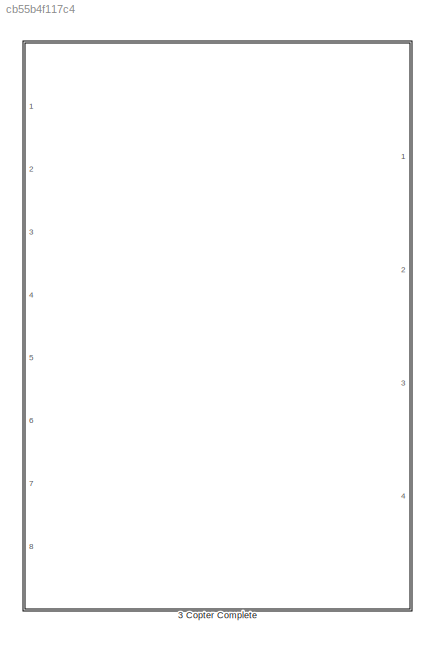
MODEL slx_cb55b4f117c4
KIND model
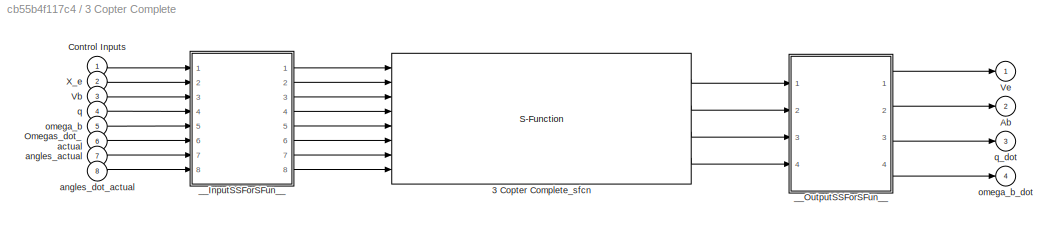
BLOCK [SubSystem] 3 Copter Complete
  FunctionWithSeparateData = off
  MaskHideContents = off
  MinAlgLoopOccurrences = off
  Opaque = off
  Ports = [8, 4]
  PropExecContextOutsideSubsystem = off
  RTWSystemCode = Auto
  RequestExecContextInheritance = off
BLOCK [S-Function] 3 Copter Complete/3 Copter Complete_sfcn
  CopyFcn = if ~strcmp(get_param(gcb,'Linkstatus'),'none') && ...\n~strcmp(get_param(gcb,'Linkstatus'),'implicit')      \n  set_param(gcb,'LinkStatus','none');                \nend
  EnableBusSupport = off
  FunctionName = Copter0_sf
  Ports = [8, 4]
BLOCK [Outport] 3 Copter Complete/Ab
  IconDisplay = Port number
  Port = 2
BLOCK [Inport] 3 Copter Complete/Control Inputs
  IconDisplay = Port number
BLOCK [Inport] 3 Copter Complete/Omegas_dot_actual
  IconDisplay = Port number
  Port = 6
BLOCK [Inport] 3 Copter Complete/Vb
  IconDisplay = Port number
  Port = 3
BLOCK [Outport] 3 Copter Complete/Ve
  IconDisplay = Port number
BLOCK [Inport] 3 Copter Complete/X_e
  IconDisplay = Port number
  Port = 2
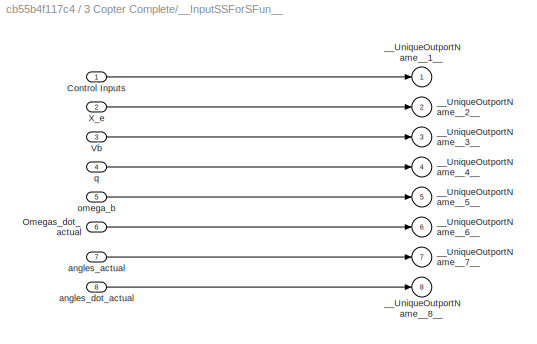
BLOCK [SubSystem] 3 Copter Complete/__InputSSForSFun__
  FunctionWithSeparateData = off
  MaskHideContents = off
  MinAlgLoopOccurrences = off
  Opaque = off
  PermitHierarchicalResolution = ExplicitOnly
  Ports = [8, 8]
  PropExecContextOutsideSubsystem = off
  RTWSystemCode = Auto
  RequestExecContextInheritance = off
BLOCK [Inport] 3 Copter Complete/__InputSSForSFun__/Control Inputs
  IconDisplay = Port number
BLOCK [Inport] 3 Copter Complete/__InputSSForSFun__/Omegas_dot_actual
  IconDisplay = Port number
  Port = 6
BLOCK [Inport] 3 Copter Complete/__InputSSForSFun__/Vb
  IconDisplay = Port number
  Port = 3
BLOCK [Inport] 3 Copter Complete/__InputSSForSFun__/X_e
  IconDisplay = Port number
  Port = 2
BLOCK [Outport] 3 Copter Complete/__InputSSForSFun__/__UniqueOutportName__1__
  IconDisplay = Port number
BLOCK [Outport] 3 Copter Complete/__InputSSForSFun__/__UniqueOutportName__2__
  IconDisplay = Port number
  Port = 2
BLOCK [Outport] 3 Copter Complete/__InputSSForSFun__/__UniqueOutportName__3__
  IconDisplay = Port number
  Port = 3
BLOCK [Outport] 3 Copter Complete/__InputSSForSFun__/__UniqueOutportName__4__
  IconDisplay = Port number
  Port = 4
BLOCK [Outport] 3 Copter Complete/__InputSSForSFun__/__UniqueOutportName__5__
  IconDisplay = Port number
  Port = 5
BLOCK [Outport] 3 Copter Complete/__InputSSForSFun__/__UniqueOutportName__6__
  IconDisplay = Port number
  Port = 6
BLOCK [Outport] 3 Copter Complete/__InputSSForSFun__/__UniqueOutportName__7__
  IconDisplay = Port number
  Port = 7
BLOCK [Outport] 3 Copter Complete/__InputSSForSFun__/__UniqueOutportName__8__
  IconDisplay = Port number
  Port = 8
BLOCK [Inport] 3 Copter Complete/__InputSSForSFun__/angles_actual
  IconDisplay = Port number
  Port = 7
BLOCK [Inport] 3 Copter Complete/__InputSSForSFun__/angles_dot_actual
  IconDisplay = Port number
  Port = 8
BLOCK [Inport] 3 Copter Complete/__InputSSForSFun__/omega_b
  IconDisplay = Port number
  Port = 5
BLOCK [Inport] 3 Copter Complete/__InputSSForSFun__/q
  IconDisplay = Port number
  Port = 4
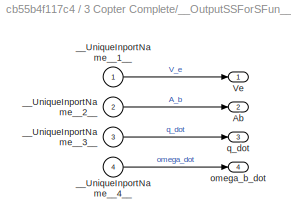
BLOCK [SubSystem] 3 Copter Complete/__OutputSSForSFun__
  FunctionWithSeparateData = off
  MaskHideContents = off
  MinAlgLoopOccurrences = off
  Opaque = off
  PermitHierarchicalResolution = ExplicitOnly
  Ports = [4, 4]
  PropExecContextOutsideSubsystem = off
  RTWSystemCode = Auto
  RequestExecContextInheritance = off
BLOCK [Outport] 3 Copter Complete/__OutputSSForSFun__/Ab
  IconDisplay = Port number
  Port = 2
BLOCK [Outport] 3 Copter Complete/__OutputSSForSFun__/Ve
  IconDisplay = Port number
BLOCK [Inport] 3 Copter Complete/__OutputSSForSFun__/__UniqueInportName__1__
  IconDisplay = Port number
BLOCK [Inport] 3 Copter Complete/__OutputSSForSFun__/__UniqueInportName__2__
  IconDisplay = Port number
  Port = 2
BLOCK [Inport] 3 Copter Complete/__OutputSSForSFun__/__UniqueInportName__3__
  IconDisplay = Port number
  Port = 3
BLOCK [Inport] 3 Copter Complete/__OutputSSForSFun__/__UniqueInportName__4__
  IconDisplay = Port number
  Port = 4
BLOCK [Outport] 3 Copter Complete/__OutputSSForSFun__/omega_b_dot
  IconDisplay = Port number
  Port = 4
BLOCK [Outport] 3 Copter Complete/__OutputSSForSFun__/q_dot
  IconDisplay = Port number
  Port = 3
BLOCK [Inport] 3 Copter Complete/angles_actual
  IconDisplay = Port number
  Port = 7
BLOCK [Inport] 3 Copter Complete/angles_dot_actual
  IconDisplay = Port number
  Port = 8
BLOCK [Inport] 3 Copter Complete/omega_b
  IconDisplay = Port number
  Port = 5
BLOCK [Outport] 3 Copter Complete/omega_b_dot
  IconDisplay = Port number
  Port = 4
BLOCK [Inport] 3 Copter Complete/q
  IconDisplay = Port number
  Port = 4
BLOCK [Outport] 3 Copter Complete/q_dot
  IconDisplay = Port number
  Port = 3
LINE 3 Copter Complete/3 Copter Complete_sfcn:1 -> 3 Copter Complete/__OutputSSForSFun__:1
LINE 3 Copter Complete/3 Copter Complete_sfcn:2 -> 3 Copter Complete/__OutputSSForSFun__:2
LINE 3 Copter Complete/3 Copter Complete_sfcn:3 -> 3 Copter Complete/__OutputSSForSFun__:3
LINE 3 Copter Complete/3 Copter Complete_sfcn:4 -> 3 Copter Complete/__OutputSSForSFun__:4
LINE 3 Copter Complete/Control Inputs:1 -> 3 Copter Complete/__InputSSForSFun__:1
LINE 3 Copter Complete/Omegas_dot_actual:1 -> 3 Copter Complete/__InputSSForSFun__:6
LINE 3 Copter Complete/Vb:1 -> 3 Copter Complete/__InputSSForSFun__:3
LINE 3 Copter Complete/X_e:1 -> 3 Copter Complete/__InputSSForSFun__:2
LINE 3 Copter Complete/__InputSSForSFun__/Control Inputs:1 -> 3 Copter Complete/__InputSSForSFun__/__UniqueOutportName__1__:1
LINE 3 Copter Complete/__InputSSForSFun__/Omegas_dot_actual:1 -> 3 Copter Complete/__InputSSForSFun__/__UniqueOutportName__6__:1
LINE 3 Copter Complete/__InputSSForSFun__/Vb:1 -> 3 Copter Complete/__InputSSForSFun__/__UniqueOutportName__3__:1
LINE 3 Copter Complete/__InputSSForSFun__/X_e:1 -> 3 Copter Complete/__InputSSForSFun__/__UniqueOutportName__2__:1
LINE 3 Copter Complete/__InputSSForSFun__/angles_actual:1 -> 3 Copter Complete/__InputSSForSFun__/__UniqueOutportName__7__:1
LINE 3 Copter Complete/__InputSSForSFun__/angles_dot_actual:1 -> 3 Copter Complete/__InputSSForSFun__/__UniqueOutportName__8__:1
LINE 3 Copter Complete/__InputSSForSFun__/omega_b:1 -> 3 Copter Complete/__InputSSForSFun__/__UniqueOutportName__5__:1
LINE 3 Copter Complete/__InputSSForSFun__/q:1 -> 3 Copter Complete/__InputSSForSFun__/__UniqueOutportName__4__:1
LINE 3 Copter Complete/__InputSSForSFun__:1 -> 3 Copter Complete/3 Copter Complete_sfcn:1
LINE 3 Copter Complete/__InputSSForSFun__:2 -> 3 Copter Complete/3 Copter Complete_sfcn:2
LINE 3 Copter Complete/__InputSSForSFun__:3 -> 3 Copter Complete/3 Copter Complete_sfcn:3
LINE 3 Copter Complete/__InputSSForSFun__:4 -> 3 Copter Complete/3 Copter Complete_sfcn:4
LINE 3 Copter Complete/__InputSSForSFun__:5 -> 3 Copter Complete/3 Copter Complete_sfcn:5
LINE 3 Copter Complete/__InputSSForSFun__:6 -> 3 Copter Complete/3 Copter Complete_sfcn:6
LINE 3 Copter Complete/__InputSSForSFun__:7 -> 3 Copter Complete/3 Copter Complete_sfcn:7
LINE 3 Copter Complete/__InputSSForSFun__:8 -> 3 Copter Complete/3 Copter Complete_sfcn:8
LINE 3 Copter Complete/__OutputSSForSFun__/__UniqueInportName__1__:1 -> 3 Copter Complete/__OutputSSForSFun__/Ve:1
LINE 3 Copter Complete/__OutputSSForSFun__/__UniqueInportName__2__:1 -> 3 Copter Complete/__OutputSSForSFun__/Ab:1
LINE 3 Copter Complete/__OutputSSForSFun__/__UniqueInportName__3__:1 -> 3 Copter Complete/__OutputSSForSFun__/q_dot:1
LINE 3 Copter Complete/__OutputSSForSFun__/__UniqueInportName__4__:1 -> 3 Copter Complete/__OutputSSForSFun__/omega_b_dot:1
LINE 3 Copter Complete/__OutputSSForSFun__:1 -> 3 Copter Complete/Ve:1
LINE 3 Copter Complete/__OutputSSForSFun__:2 -> 3 Copter Complete/Ab:1
LINE 3 Copter Complete/__OutputSSForSFun__:3 -> 3 Copter Complete/q_dot:1
LINE 3 Copter Complete/__OutputSSForSFun__:4 -> 3 Copter Complete/omega_b_dot:1
LINE 3 Copter Complete/angles_actual:1 -> 3 Copter Complete/__InputSSForSFun__:7
LINE 3 Copter Complete/angles_dot_actual:1 -> 3 Copter Complete/__InputSSForSFun__:8
LINE 3 Copter Complete/omega_b:1 -> 3 Copter Complete/__InputSSForSFun__:5
LINE 3 Copter Complete/q:1 -> 3 Copter Complete/__InputSSForSFun__:4
